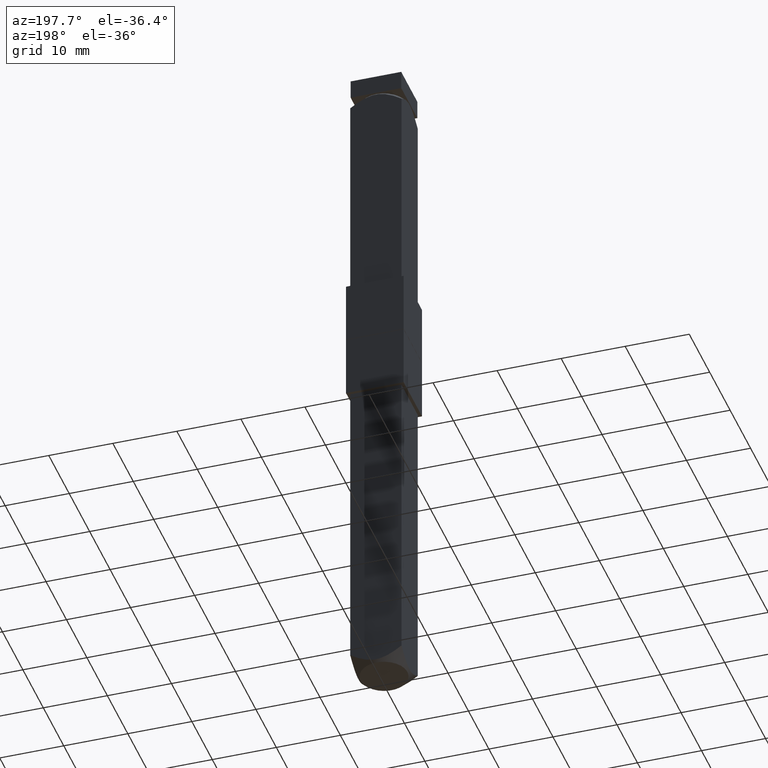
[diagram: clean part render]
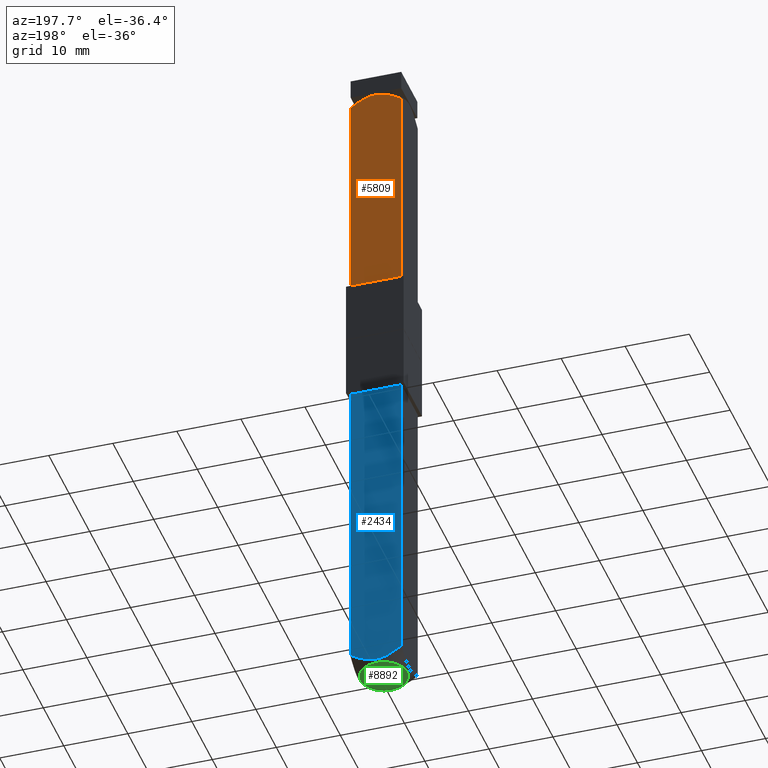
[diagram: same view with three faces highlighted in distinct colors, each labeled with its STEP entity id]
A machine part, auxiliary view with three faces highlighted in distinct colors.
Their STEP definitions:

[orange] entity #5809 — the highlighted planar face has unit normal (0, 1, 0).
#25 = DIRECTION ( 'NONE',  ( 0.0000000000000000000, -0.0000000000000000000, 1.000000000000000000 ) ) ;
#110 = CARTESIAN_POINT ( 'NONE',  ( -4.000000000000011500, 0.9172548636726485200, -44.55974550961616400 ) ) ;
#232 = PLANE ( 'NONE',  #10511 ) ;
#510 = ORIENTED_EDGE ( 'NONE', *, *, #1686, .F. ) ;
#590 = EDGE_CURVE ( 'NONE', #4467, #1016, #3996, .T. ) ;
#871 = CARTESIAN_POINT ( 'NONE',  ( -4.000000000000012400, 4.000000000000010700, -43.00314575050761300 ) ) ;
#1016 = VERTEX_POINT ( 'NONE', #8326 ) ;
#1363 = CARTESIAN_POINT ( 'NONE',  ( -4.000000000000011500, -1.301042606982610300E-015, -9.800000000000000700 ) ) ;
#1583 = CARTESIAN_POINT ( 'NONE',  ( -4.000000000000010700, -1.443714205897971100, -44.42144097237444800 ) ) ;
#1686 = EDGE_CURVE ( 'NONE', #1016, #1758, #3796, .T. ) ;
#1758 = VERTEX_POINT ( 'NONE', #3683 ) ;
#1762 = CARTESIAN_POINT ( 'NONE',  ( -4.000000000000013300, 3.400465325022807800, -43.41568981188456200 ) ) ;
#2597 = CARTESIAN_POINT ( 'NONE',  ( -4.000000000000013300, 3.702772751614005700, -43.21331715339476200 ) ) ;
#2646 = ORIENTED_EDGE ( 'NONE', *, *, #590, .F. ) ;
#2679 = CARTESIAN_POINT ( 'NONE',  ( -4.000000000000012400, 2.779486359185344900, -43.79531405500968300 ) ) ;
#2688 = VERTEX_POINT ( 'NONE', #3412 ) ;
#3299 = CARTESIAN_POINT ( 'NONE',  ( -4.000000000000010700, -3.397323611314474200, -43.41785052794244100 ) ) ;
#3412 = CARTESIAN_POINT ( 'NONE',  ( -4.000000000000009800, -4.000000000000009800, -9.800000000000016700 ) ) ;
#3497 = VECTOR ( 'NONE', #25, 1000.000000000000000 ) ;
#3531 = VECTOR ( 'NONE', #4325, 1000.000000000000000 ) ;
#3683 = CARTESIAN_POINT ( 'NONE',  ( -4.000000000000012400, 4.000000000000010700, -9.800000000000000700 ) ) ;
#3796 = LINE ( 'NONE', #6072, #3531 ) ;
#3847 = LINE ( 'NONE', #1363, #7463 ) ;
#3996 = B_SPLINE_CURVE_WITH_KNOTS ( 'NONE', 3,
 ( #6647, #8440, #3299, #5865, #4141, #6729, #1583, #7577, #7805, #4291, #6944, #4328, #110, #7769, #5200, #10457, #2679, #1762, #2597, #871 ),
 .UNSPECIFIED., .F., .F.,
 ( 4, 2, 2, 2, 2, 2, 2, 2, 2, 4 ),
 ( 0.004436527632185937300, 0.005532302537868263200, 0.006628077443550589900, 0.007723852349232916700, 0.008819627254915241700, 0.009367514707756406000, 0.009915402160597570200, 0.01101117706627989500, 0.01210695197196222000, 0.01320272687764454900 ),
 .UNSPECIFIED. ) ;
#4141 = CARTESIAN_POINT ( 'NONE',  ( -4.000000000000010700, -2.447582843339605400, -43.97973501261854100 ) ) ;
#4291 = CARTESIAN_POINT ( 'NONE',  ( -4.000000000000012400, 0.1856813462772259300, -44.65988312021557500 ) ) ;
#4325 = DIRECTION ( 'NONE',  ( 0.0000000000000000000, -0.0000000000000000000, 1.000000000000000000 ) ) ;
#4328 = CARTESIAN_POINT ( 'NONE',  ( -4.000000000000011500, 0.7372169043505321100, -44.59668223525940100 ) ) ;
#4467 = VERTEX_POINT ( 'NONE', #7340 ) ;
#4651 = EDGE_CURVE ( 'NONE', #4467, #2688, #11186, .T. ) ;
#4851 = ORIENTED_EDGE ( 'NONE', *, *, #8336, .F. ) ;
#5200 = CARTESIAN_POINT ( 'NONE',  ( -4.000000000000011500, 1.796119398830624800, -44.28507935104344300 ) ) ;
#5585 = DIRECTION ( 'NONE',  ( 3.252606517456511300E-016, -1.000000000000000000, 0.0000000000000000000 ) ) ;
#5809 = ADVANCED_FACE ( 'NONE', ( #7083 ), #232, .T. ) ;
#5865 = CARTESIAN_POINT ( 'NONE',  ( -4.000000000000009800, -2.770159802554744500, -43.80077077109045500 ) ) ;
#6072 = CARTESIAN_POINT ( 'NONE',  ( -4.000000000000012400, 4.000000000000010700, -45.00000000000000000 ) ) ;
#6264 = DIRECTION ( 'NONE',  ( -1.000000000000000000, -3.252606517456511800E-016, 0.0000000000000000000 ) ) ;
#6647 = CARTESIAN_POINT ( 'NONE',  ( -4.000000000000009800, -4.000000000000011500, -43.00314575050761300 ) ) ;
#6729 = CARTESIAN_POINT ( 'NONE',  ( -4.000000000000011500, -1.784885636246024600, -44.28964128342127500 ) ) ;
#6944 = CARTESIAN_POINT ( 'NONE',  ( -4.000000000000012400, 0.3707782775724411400, -44.64695389706075400 ) ) ;
#7083 = FACE_OUTER_BOUND ( 'NONE', #10255, .T. ) ;
#7340 = CARTESIAN_POINT ( 'NONE',  ( -4.000000000000009800, -4.000000000000011500, -43.00314575050761300 ) ) ;
#7463 = VECTOR ( 'NONE', #5585, 1000.000000000000000 ) ;
#7577 = CARTESIAN_POINT ( 'NONE',  ( -4.000000000000011500, -0.7290103959871383500, -44.60876215462338500 ) ) ;
#7769 = CARTESIAN_POINT ( 'NONE',  ( -4.000000000000012400, 1.449376973408508200, -44.41929071793718700 ) ) ;
#7805 = CARTESIAN_POINT ( 'NONE',  ( -4.000000000000009800, -0.3637571989988124300, -44.66023134942191300 ) ) ;
#8048 = CARTESIAN_POINT ( 'NONE',  ( -4.000000000000012400, 4.000000000000010700, -45.00000000000000000 ) ) ;
#8326 = CARTESIAN_POINT ( 'NONE',  ( -4.000000000000012400, 4.000000000000010700, -43.00314575050761300 ) ) ;
#8336 = EDGE_CURVE ( 'NONE', #1758, #2688, #3847, .T. ) ;
#8440 = CARTESIAN_POINT ( 'NONE',  ( -4.000000000000010700, -3.701517467988861400, -43.21420477295841800 ) ) ;
#9684 = DIRECTION ( 'NONE',  ( 3.252606517456511800E-016, -1.000000000000000000, 0.0000000000000000000 ) ) ;
#10079 = ORIENTED_EDGE ( 'NONE', *, *, #4651, .T. ) ;
#10255 = EDGE_LOOP ( 'NONE', ( #2646, #10079, #4851, #510 ) ) ;
#10457 = CARTESIAN_POINT ( 'NONE',  ( -4.000000000000009800, 2.460946622351593700, -43.97276797375312200 ) ) ;
#10511 = AXIS2_PLACEMENT_3D ( 'NONE', #8048, #6264, #9684 ) ;
#11184 = CARTESIAN_POINT ( 'NONE',  ( -4.000000000000009800, -4.000000000000009800, -45.00000000000000000 ) ) ;
#11186 = LINE ( 'NONE', #11184, #3497 ) ;

[blue] entity #2434 — the highlighted planar face has unit normal (-0, 1, 0).
#487 = EDGE_CURVE ( 'NONE', #4324, #5590, #9456, .T. ) ;
#612 = CARTESIAN_POINT ( 'NONE',  ( -0.3637571989988097600, 4.000000000000000900, -59.66023134942192700 ) ) ;
#1396 = CARTESIAN_POINT ( 'NONE',  ( -3.701517467988862700, 4.000000000000000900, -58.21420477295842500 ) ) ;
#1470 = CARTESIAN_POINT ( 'NONE',  ( 0.7372169043505328900, 4.000000000000000000, -59.59668223525941500 ) ) ;
#1940 = DIRECTION ( 'NONE',  ( 0.0000000000000000000, 0.0000000000000000000, 1.000000000000000000 ) ) ;
#2226 = VECTOR ( 'NONE', #8940, 1000.000000000000000 ) ;
#2429 = VECTOR ( 'NONE', #7605, 1000.000000000000000 ) ;
#2434 = ADVANCED_FACE ( 'NONE', ( #10649 ), #4488, .T. ) ;
#2493 = CARTESIAN_POINT ( 'NONE',  ( 3.702772751614006100, 4.000000000000000900, -58.21331715339476200 ) ) ;
#2572 = VERTEX_POINT ( 'NONE', #9098 ) ;
#3080 = EDGE_LOOP ( 'NONE', ( #6816, #11108, #5501, #7453 ) ) ;
#3155 = CARTESIAN_POINT ( 'NONE',  ( -4.000000000000001800, 4.000000000000000000, -58.00314575050762000 ) ) ;
#3359 = CARTESIAN_POINT ( 'NONE',  ( 2.779486359185346300, 4.000000000000002700, -58.79531405500969800 ) ) ;
#3906 = LINE ( 'NONE', #11035, #2429 ) ;
#4036 = CARTESIAN_POINT ( 'NONE',  ( -2.770159802554741400, 3.999999999999999100, -58.80077077109045500 ) ) ;
#4071 = CARTESIAN_POINT ( 'NONE',  ( 0.9172548636726479700, 4.000000000000000900, -59.55974550961615700 ) ) ;
#4084 = EDGE_CURVE ( 'NONE', #4342, #2572, #3906, .T. ) ;
#4324 = VERTEX_POINT ( 'NONE', #9766 ) ;
#4342 = VERTEX_POINT ( 'NONE', #9661 ) ;
#4488 = PLANE ( 'NONE',  #5270 ) ;
#4899 = CARTESIAN_POINT ( 'NONE',  ( -1.784885636246021900, 4.000000000000000900, -59.28964128342126800 ) ) ;
#5270 = AXIS2_PLACEMENT_3D ( 'NONE', #9662, #7078, #7038 ) ;
#5501 = ORIENTED_EDGE ( 'NONE', *, *, #4084, .F. ) ;
#5590 = VERTEX_POINT ( 'NONE', #10030 ) ;
#5755 = CARTESIAN_POINT ( 'NONE',  ( -0.7290103959871383500, 3.999999999999999100, -59.60876215462337800 ) ) ;
#5792 = CARTESIAN_POINT ( 'NONE',  ( 2.460946622351594100, 4.000000000000000900, -58.97276797375313600 ) ) ;
#6609 = CARTESIAN_POINT ( 'NONE',  ( 0.1856813462772275700, 4.000000000000000900, -59.65988312021559600 ) ) ;
#6816 = ORIENTED_EDGE ( 'NONE', *, *, #487, .F. ) ;
#6927 = LINE ( 'NONE', #9059, #2226 ) ;
#7038 = DIRECTION ( 'NONE',  ( -1.000000000000000000, -1.084202172485504300E-016, 0.0000000000000000000 ) ) ;
#7046 = CARTESIAN_POINT ( 'NONE',  ( 4.000000000000000000, 4.000000000000000000, -60.00000000000000000 ) ) ;
#7078 = DIRECTION ( 'NONE',  ( -1.084202172485504300E-016, 1.000000000000000000, 0.0000000000000000000 ) ) ;
#7400 = CARTESIAN_POINT ( 'NONE',  ( -3.397323611314472500, 4.000000000000000000, -58.41785052794243400 ) ) ;
#7453 = ORIENTED_EDGE ( 'NONE', *, *, #10849, .F. ) ;
#7605 = DIRECTION ( 'NONE',  ( -1.000000000000000000, -1.084202172485504300E-016, 0.0000000000000000000 ) ) ;
#8126 = VECTOR ( 'NONE', #1940, 1000.000000000000000 ) ;
#8940 = DIRECTION ( 'NONE',  ( 0.0000000000000000000, 0.0000000000000000000, 1.000000000000000000 ) ) ;
#9059 = CARTESIAN_POINT ( 'NONE',  ( -4.000000000000001800, 4.000000000000000000, -60.00000000000000000 ) ) ;
#9098 = CARTESIAN_POINT ( 'NONE',  ( -4.000000000000001800, 4.000000000000000000, -9.800000000000002500 ) ) ;
#9121 = EDGE_CURVE ( 'NONE', #4324, #2572, #6927, .T. ) ;
#9227 = CARTESIAN_POINT ( 'NONE',  ( 0.3707782775724431400, 4.000000000000000900, -59.64695389706076200 ) ) ;
#9375 = CARTESIAN_POINT ( 'NONE',  ( 4.000000000000000900, 4.000000000000000000, -58.00314575050762000 ) ) ;
#9456 = B_SPLINE_CURVE_WITH_KNOTS ( 'NONE', 3,
 ( #3155, #1396, #7400, #4036, #10061, #4899, #10932, #5755, #612, #6609, #9227, #1470, #4071, #10103, #10971, #5792, #3359, #11008, #2493, #9375 ),
 .UNSPECIFIED., .F., .F.,
 ( 4, 2, 2, 2, 2, 2, 2, 2, 2, 4 ),
 ( 0.004436527632185936400, 0.005532302537868260600, 0.006628077443550584700, 0.007723852349232909800, 0.008819627254915234800, 0.009367514707756395600, 0.009915402160597556300, 0.01101117706627988300, 0.01210695197196220600, 0.01320272687764453300 ),
 .UNSPECIFIED. ) ;
#9661 = CARTESIAN_POINT ( 'NONE',  ( 4.000000000000000000, 4.000000000000000000, -9.800000000000002500 ) ) ;
#9662 = CARTESIAN_POINT ( 'NONE',  ( -4.000000000000001800, 4.000000000000000000, -60.00000000000000000 ) ) ;
#9736 = LINE ( 'NONE', #7046, #8126 ) ;
#9766 = CARTESIAN_POINT ( 'NONE',  ( -4.000000000000001800, 4.000000000000000000, -58.00314575050762000 ) ) ;
#10030 = CARTESIAN_POINT ( 'NONE',  ( 4.000000000000000900, 4.000000000000000000, -58.00314575050762000 ) ) ;
#10061 = CARTESIAN_POINT ( 'NONE',  ( -2.447582843339601900, 4.000000000000000000, -58.97973501261854800 ) ) ;
#10103 = CARTESIAN_POINT ( 'NONE',  ( 1.449376973408506700, 4.000000000000000000, -59.41929071793717300 ) ) ;
#10649 = FACE_OUTER_BOUND ( 'NONE', #3080, .T. ) ;
#10849 = EDGE_CURVE ( 'NONE', #5590, #4342, #9736, .T. ) ;
#10932 = CARTESIAN_POINT ( 'NONE',  ( -1.443714205897970400, 4.000000000000000000, -59.42144097237445500 ) ) ;
#10971 = CARTESIAN_POINT ( 'NONE',  ( 1.796119398830625700, 4.000000000000000900, -59.28507935104343600 ) ) ;
#11008 = CARTESIAN_POINT ( 'NONE',  ( 3.400465325022808700, 4.000000000000000900, -58.41568981188457600 ) ) ;
#11035 = CARTESIAN_POINT ( 'NONE',  ( -4.336808689942017700E-016, 4.000000000000000000, -9.800000000000002500 ) ) ;
#11108 = ORIENTED_EDGE ( 'NONE', *, *, #9121, .T. ) ;

[green] entity #8892 — the highlighted planar face has unit normal (0, 0, 1).
#678 = DIRECTION ( 'NONE',  ( -0.0000000000000000000, 0.0000000000000000000, 1.000000000000000000 ) ) ;
#1249 = VERTEX_POINT ( 'NONE', #5186 ) ;
#2939 = DIRECTION ( 'NONE',  ( -1.000000000000000000, 0.0000000000000000000, 0.0000000000000000000 ) ) ;
#3984 = PLANE ( 'NONE',  #7540 ) ;
#4760 = CARTESIAN_POINT ( 'NONE',  ( 0.0000000000000000000, 0.0000000000000000000, -60.00000000000000000 ) ) ;
#5186 = CARTESIAN_POINT ( 'NONE',  ( -3.660000000000013900, 0.0000000000000000000, -60.00000000000000000 ) ) ;
#5351 = EDGE_LOOP ( 'NONE', ( #5951 ) ) ;
#5951 = ORIENTED_EDGE ( 'NONE', *, *, #9067, .T. ) ;
#7540 = AXIS2_PLACEMENT_3D ( 'NONE', #9403, #678, #9297 ) ;
#7907 = AXIS2_PLACEMENT_3D ( 'NONE', #4760, #8181, #2939 ) ;
#8181 = DIRECTION ( 'NONE',  ( -0.0000000000000000000, -0.0000000000000000000, -1.000000000000000000 ) ) ;
#8892 = ADVANCED_FACE ( 'NONE', ( #10443 ), #3984, .F. ) ;
#9067 = EDGE_CURVE ( 'NONE', #1249, #1249, #9508, .T. ) ;
#9297 = DIRECTION ( 'NONE',  ( 1.000000000000000000, 0.0000000000000000000, 0.0000000000000000000 ) ) ;
#9403 = CARTESIAN_POINT ( 'NONE',  ( 0.0000000000000000000, 0.0000000000000000000, -60.00000000000000000 ) ) ;
#9508 = CIRCLE ( 'NONE', #7907, 3.660000000000013900 ) ;
#10443 = FACE_OUTER_BOUND ( 'NONE', #5351, .T. ) ;